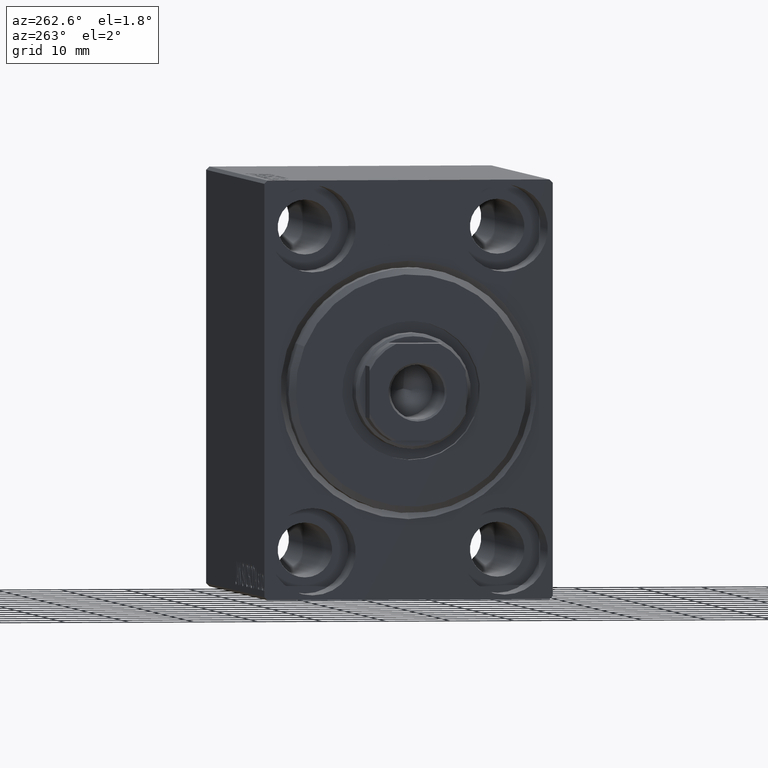
[diagram: clean part render]
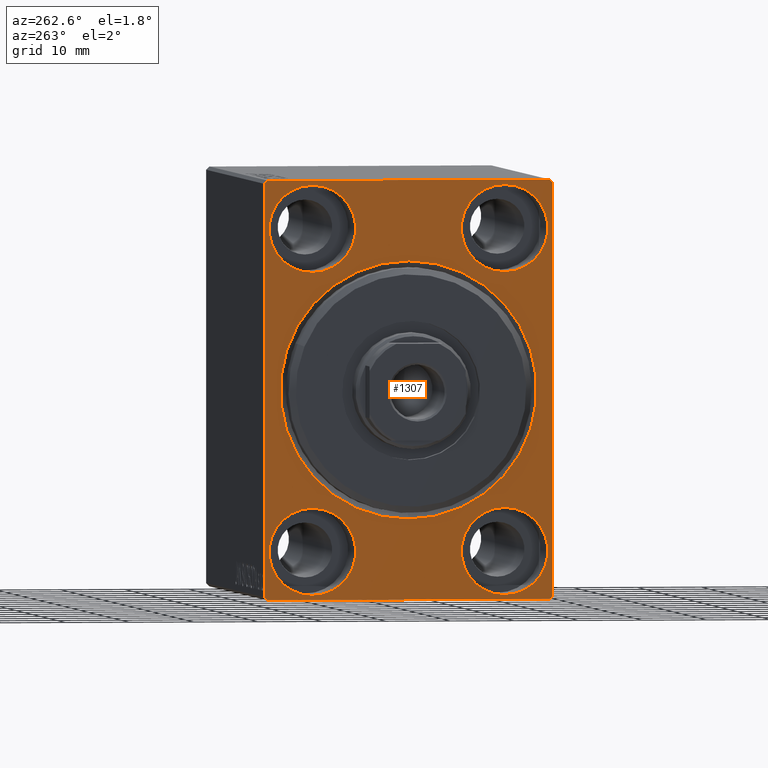
[diagram: same view with one face highlighted and labeled with its STEP entity id]
A machine part, auxiliary view. The second image highlights one B-rep face of the part: STEP entity #1307.
In plain terms, the highlighted planar face has unit normal (1, 0, 0).
Its self-contained STEP definition (entity closure, byte-faithful):
#258 = CARTESIAN_POINT ( 'NONE',  ( 0.000000000000000000, 22.00000000000001421, -32.50000000000000711 ) ) ;
#289 = AXIS2_PLACEMENT_3D ( 'NONE', #36492, #5562, #26475 ) ;
#637 = FACE_OUTER_BOUND ( 'NONE', #5771, .T. ) ;
#1307 = ADVANCED_FACE ( 'NONE', ( #38453, #41344, #24872, #4631, #25316, #637 ), #42226, .F. ) ;
#1436 = EDGE_CURVE ( 'NONE', #35369, #43228, #42024, .T. ) ;
#1600 = CIRCLE ( 'NONE', #12230, 6.749999999999999112 ) ;
#2415 = DIRECTION ( 'NONE',  ( 1.000000000000000000, 0.000000000000000000, 0.000000000000000000 ) ) ;
#3055 = EDGE_CURVE ( 'NONE', #25371, #10202, #42170, .T. ) ;
#3279 = ORIENTED_EDGE ( 'NONE', *, *, #33437, .T. ) ;
#3360 = CARTESIAN_POINT ( 'NONE',  ( 0.000000000000000000, -14.99999999999999645, 25.00000000000000000 ) ) ;
#3452 = EDGE_CURVE ( 'NONE', #4299, #5456, #37913, .T. ) ;
#4108 = DIRECTION ( 'NONE',  ( 0.000000000000000000, -1.000000000000000000, -1.541976423090495387E-16 ) ) ;
#4241 = EDGE_CURVE ( 'NONE', #35288, #22799, #42171, .T. ) ;
#4299 = VERTEX_POINT ( 'NONE', #16279 ) ;
#4524 = DIRECTION ( 'NONE',  ( -0.000000000000000000, -0.7071067811865378028, 0.7071067811865573427 ) ) ;
#4572 = VECTOR ( 'NONE', #26530, 1000.000000000000000 ) ;
#4592 = ORIENTED_EDGE ( 'NONE', *, *, #11356, .F. ) ;
#4631 = FACE_BOUND ( 'NONE', #29310, .T. ) ;
#4639 = CARTESIAN_POINT ( 'NONE',  ( 0.000000000000000000, -22.50000000000000711, -32.50000000000000711 ) ) ;
#5456 = VERTEX_POINT ( 'NONE', #35968 ) ;
#5562 = DIRECTION ( 'NONE',  ( 1.000000000000000000, 0.000000000000000000, 0.000000000000000000 ) ) ;
#5565 = ORIENTED_EDGE ( 'NONE', *, *, #43705, .T. ) ;
#5753 = CARTESIAN_POINT ( 'NONE',  ( 0.000000000000000000, -15.00000000000000355, -18.25000000000000355 ) ) ;
#5771 = EDGE_LOOP ( 'NONE', ( #35817, #30609, #30430, #5565, #13773, #7352, #4592, #3279 ) ) ;
#5996 = ORIENTED_EDGE ( 'NONE', *, *, #11722, .F. ) ;
#6394 = DIRECTION ( 'NONE',  ( 0.000000000000000000, 0.000000000000000000, -1.000000000000000000 ) ) ;
#6441 = DIRECTION ( 'NONE',  ( 0.000000000000000000, 0.000000000000000000, 1.000000000000000000 ) ) ;
#6713 = EDGE_CURVE ( 'NONE', #43228, #35369, #9252, .T. ) ;
#7288 = CIRCLE ( 'NONE', #33612, 6.749999999999999112 ) ;
#7352 = ORIENTED_EDGE ( 'NONE', *, *, #33740, .T. ) ;
#7607 = AXIS2_PLACEMENT_3D ( 'NONE', #13802, #23390, #10027 ) ;
#8065 = DIRECTION ( 'NONE',  ( -0.000000000000000000, 0.7071067811865474617, 0.7071067811865474617 ) ) ;
#8336 = CIRCLE ( 'NONE', #7607, 6.749999999999999112 ) ;
#8344 = DIRECTION ( 'NONE',  ( 0.000000000000000000, -1.067522139062650425E-16, 1.000000000000000000 ) ) ;
#8539 = AXIS2_PLACEMENT_3D ( 'NONE', #38562, #24768, #34345 ) ;
#9252 = CIRCLE ( 'NONE', #8539, 6.749999999999999112 ) ;
#10027 = DIRECTION ( 'NONE',  ( 0.000000000000000000, 0.000000000000000000, 1.000000000000000000 ) ) ;
#10202 = VERTEX_POINT ( 'NONE', #24713 ) ;
#10439 = VERTEX_POINT ( 'NONE', #11964 ) ;
#10700 = VERTEX_POINT ( 'NONE', #30200 ) ;
#10762 = AXIS2_PLACEMENT_3D ( 'NONE', #11299, #38896, #11745 ) ;
#11083 = VERTEX_POINT ( 'NONE', #34461 ) ;
#11299 = CARTESIAN_POINT ( 'NONE',  ( 0.000000000000000000, 0.000000000000000000, 0.000000000000000000 ) ) ;
#11356 = EDGE_CURVE ( 'NONE', #10439, #41612, #17990, .T. ) ;
#11722 = EDGE_CURVE ( 'NONE', #24255, #27100, #1600, .T. ) ;
#11745 = DIRECTION ( 'NONE',  ( 0.000000000000000000, 0.000000000000000000, -1.000000000000000000 ) ) ;
#11964 = CARTESIAN_POINT ( 'NONE',  ( 0.000000000000000000, -22.00000000000002132, -32.50000000000000711 ) ) ;
#12230 = AXIS2_PLACEMENT_3D ( 'NONE', #43513, #35716, #18824 ) ;
#13298 = CARTESIAN_POINT ( 'NONE',  ( 0.000000000000000000, 0.000000000000000000, 0.000000000000000000 ) ) ;
#13688 = CARTESIAN_POINT ( 'NONE',  ( 0.000000000000000000, 22.49999999999999289, 32.50000000000000000 ) ) ;
#13773 = ORIENTED_EDGE ( 'NONE', *, *, #3055, .F. ) ;
#13802 = CARTESIAN_POINT ( 'NONE',  ( 0.000000000000000000, 14.99999999999999645, -25.00000000000000000 ) ) ;
#13869 = EDGE_LOOP ( 'NONE', ( #38647, #41527 ) ) ;
#13877 = CARTESIAN_POINT ( 'NONE',  ( 0.000000000000000000, -22.00000000000002132, -32.50000000000000711 ) ) ;
#14011 = DIRECTION ( 'NONE',  ( -1.000000000000000000, 0.000000000000000000, 0.000000000000000000 ) ) ;
#14201 = DIRECTION ( 'NONE',  ( -0.000000000000000000, 0.7071067811865425767, -0.7071067811865525687 ) ) ;
#14225 = DIRECTION ( 'NONE',  ( -1.000000000000000000, 0.000000000000000000, 0.000000000000000000 ) ) ;
#14321 = VECTOR ( 'NONE', #8065, 1000.000000000000114 ) ;
#14488 = VERTEX_POINT ( 'NONE', #33618 ) ;
#15086 = VECTOR ( 'NONE', #42233, 1000.000000000000000 ) ;
#15376 = CARTESIAN_POINT ( 'NONE',  ( 0.000000000000000000, 14.99999999999999645, -18.25000000000000355 ) ) ;
#16248 = CARTESIAN_POINT ( 'NONE',  ( 0.000000000000000000, 15.00000000000000355, 25.00000000000000000 ) ) ;
#16279 = CARTESIAN_POINT ( 'NONE',  ( 0.000000000000000000, 2.449293598294706907E-15, -20.00000000000000355 ) ) ;
#17360 = CARTESIAN_POINT ( 'NONE',  ( 0.000000000000000000, 15.00000000000000355, 25.00000000000000000 ) ) ;
#17804 = VERTEX_POINT ( 'NONE', #22846 ) ;
#17990 = LINE ( 'NONE', #4639, #15086 ) ;
#18203 = EDGE_CURVE ( 'NONE', #11083, #22202, #7288, .T. ) ;
#18739 = AXIS2_PLACEMENT_3D ( 'NONE', #40386, #27250, #36831 ) ;
#18824 = DIRECTION ( 'NONE',  ( 0.000000000000000000, 0.000000000000000000, 1.000000000000000000 ) ) ;
#18970 = LINE ( 'NONE', #28112, #4572 ) ;
#19342 = CARTESIAN_POINT ( 'NONE',  ( 0.000000000000000000, -22.50000000000000711, -32.00000000000000711 ) ) ;
#19708 = CARTESIAN_POINT ( 'NONE',  ( 0.000000000000000000, -14.99999999999999645, 31.75000000000000000 ) ) ;
#20465 = LINE ( 'NONE', #24017, #20792 ) ;
#20792 = VECTOR ( 'NONE', #14201, 999.9999999999998863 ) ;
#20953 = ORIENTED_EDGE ( 'NONE', *, *, #36291, .F. ) ;
#21126 = CARTESIAN_POINT ( 'NONE',  ( 0.000000000000000000, 22.50000000000000000, -32.00000000000002132 ) ) ;
#21655 = DIRECTION ( 'NONE',  ( -1.000000000000000000, 0.000000000000000000, 0.000000000000000000 ) ) ;
#22037 = CARTESIAN_POINT ( 'NONE',  ( 0.000000000000000000, 14.99999999999999645, -31.75000000000000000 ) ) ;
#22202 = VERTEX_POINT ( 'NONE', #40906 ) ;
#22580 = EDGE_CURVE ( 'NONE', #10700, #36370, #18970, .T. ) ;
#22799 = VERTEX_POINT ( 'NONE', #22037 ) ;
#22846 = CARTESIAN_POINT ( 'NONE',  ( 0.000000000000000000, 21.99999999999999289, 32.50000000000000000 ) ) ;
#23390 = DIRECTION ( 'NONE',  ( -1.000000000000000000, 0.000000000000000000, 0.000000000000000000 ) ) ;
#24017 = CARTESIAN_POINT ( 'NONE',  ( 0.000000000000000000, 21.99999999999999289, 32.50000000000000000 ) ) ;
#24122 = EDGE_LOOP ( 'NONE', ( #37958, #29153 ) ) ;
#24145 = EDGE_CURVE ( 'NONE', #5456, #4299, #37295, .T. ) ;
#24250 = DIRECTION ( 'NONE',  ( 0.000000000000000000, 0.000000000000000000, 1.000000000000000000 ) ) ;
#24255 = VERTEX_POINT ( 'NONE', #30856 ) ;
#24713 = CARTESIAN_POINT ( 'NONE',  ( 0.000000000000000000, 22.49999999999999289, 31.99999999999999289 ) ) ;
#24768 = DIRECTION ( 'NONE',  ( -1.000000000000000000, 0.000000000000000000, 0.000000000000000000 ) ) ;
#24872 = FACE_BOUND ( 'NONE', #38844, .T. ) ;
#25263 = CARTESIAN_POINT ( 'NONE',  ( 0.000000000000000000, 22.50000000000000000, -32.50000000000000711 ) ) ;
#25316 = FACE_BOUND ( 'NONE', #44021, .T. ) ;
#25371 = VERTEX_POINT ( 'NONE', #21126 ) ;
#26044 = AXIS2_PLACEMENT_3D ( 'NONE', #41900, #21655, #34349 ) ;
#26475 = DIRECTION ( 'NONE',  ( 0.000000000000000000, 0.000000000000000000, -1.000000000000000000 ) ) ;
#26530 = DIRECTION ( 'NONE',  ( 0.000000000000000000, 0.000000000000000000, -1.000000000000000000 ) ) ;
#26746 = CIRCLE ( 'NONE', #26044, 6.749999999999999112 ) ;
#27100 = VERTEX_POINT ( 'NONE', #5753 ) ;
#27250 = DIRECTION ( 'NONE',  ( -1.000000000000000000, 0.000000000000000000, 0.000000000000000000 ) ) ;
#28112 = CARTESIAN_POINT ( 'NONE',  ( 0.000000000000000000, -22.50000000000000711, 32.49999999999999289 ) ) ;
#28322 = CARTESIAN_POINT ( 'NONE',  ( 0.000000000000000000, -22.50000000000000711, 31.99999999999999289 ) ) ;
#29153 = ORIENTED_EDGE ( 'NONE', *, *, #3452, .T. ) ;
#29310 = EDGE_LOOP ( 'NONE', ( #20953, #37508 ) ) ;
#29875 = ORIENTED_EDGE ( 'NONE', *, *, #1436, .F. ) ;
#30200 = CARTESIAN_POINT ( 'NONE',  ( 0.000000000000000000, -22.50000000000000711, 31.99999999999999289 ) ) ;
#30430 = ORIENTED_EDGE ( 'NONE', *, *, #30897, .F. ) ;
#30609 = ORIENTED_EDGE ( 'NONE', *, *, #41505, .T. ) ;
#30686 = DIRECTION ( 'NONE',  ( -1.000000000000000000, 0.000000000000000000, 0.000000000000000000 ) ) ;
#30856 = CARTESIAN_POINT ( 'NONE',  ( 0.000000000000000000, -15.00000000000000355, -31.75000000000000000 ) ) ;
#30897 = EDGE_CURVE ( 'NONE', #17804, #14488, #34596, .T. ) ;
#33179 = CARTESIAN_POINT ( 'NONE',  ( 0.000000000000000000, -14.99999999999999645, 18.25000000000000355 ) ) ;
#33437 = EDGE_CURVE ( 'NONE', #10439, #36370, #35004, .T. ) ;
#33491 = EDGE_CURVE ( 'NONE', #27100, #24255, #26746, .T. ) ;
#33612 = AXIS2_PLACEMENT_3D ( 'NONE', #16248, #30686, #6441 ) ;
#33618 = CARTESIAN_POINT ( 'NONE',  ( 0.000000000000000000, -21.99999999999999289, 32.49999999999999289 ) ) ;
#33740 = EDGE_CURVE ( 'NONE', #25371, #41612, #34946, .T. ) ;
#33924 = CIRCLE ( 'NONE', #41029, 6.749999999999999112 ) ;
#34079 = DIRECTION ( 'NONE',  ( 0.000000000000000000, -0.7071067811865376918, -0.7071067811865573427 ) ) ;
#34345 = DIRECTION ( 'NONE',  ( 0.000000000000000000, 0.000000000000000000, 1.000000000000000000 ) ) ;
#34349 = DIRECTION ( 'NONE',  ( 0.000000000000000000, 0.000000000000000000, 1.000000000000000000 ) ) ;
#34461 = CARTESIAN_POINT ( 'NONE',  ( 0.000000000000000000, 15.00000000000000355, 18.25000000000000355 ) ) ;
#34596 = LINE ( 'NONE', #13688, #42433 ) ;
#34946 = LINE ( 'NONE', #38513, #40961 ) ;
#35004 = LINE ( 'NONE', #13877, #35274 ) ;
#35274 = VECTOR ( 'NONE', #4524, 1000.000000000000000 ) ;
#35288 = VERTEX_POINT ( 'NONE', #15376 ) ;
#35369 = VERTEX_POINT ( 'NONE', #33179 ) ;
#35716 = DIRECTION ( 'NONE',  ( -1.000000000000000000, 0.000000000000000000, 0.000000000000000000 ) ) ;
#35817 = ORIENTED_EDGE ( 'NONE', *, *, #22580, .F. ) ;
#35870 = LINE ( 'NONE', #28322, #14321 ) ;
#35968 = CARTESIAN_POINT ( 'NONE',  ( 0.000000000000000000, 0.000000000000000000, 20.00000000000000355 ) ) ;
#36097 = EDGE_CURVE ( 'NONE', #22799, #35288, #8336, .T. ) ;
#36291 = EDGE_CURVE ( 'NONE', #22202, #11083, #33924, .T. ) ;
#36370 = VERTEX_POINT ( 'NONE', #19342 ) ;
#36492 = CARTESIAN_POINT ( 'NONE',  ( 0.000000000000000000, 0.000000000000000000, 0.000000000000000000 ) ) ;
#36831 = DIRECTION ( 'NONE',  ( 0.000000000000000000, 0.000000000000000000, 1.000000000000000000 ) ) ;
#37295 = CIRCLE ( 'NONE', #42985, 20.00000000000000355 ) ;
#37508 = ORIENTED_EDGE ( 'NONE', *, *, #18203, .F. ) ;
#37612 = DIRECTION ( 'NONE',  ( 0.000000000000000000, 0.000000000000000000, 1.000000000000000000 ) ) ;
#37796 = VECTOR ( 'NONE', #8344, 1000.000000000000000 ) ;
#37913 = CIRCLE ( 'NONE', #289, 20.00000000000000355 ) ;
#37958 = ORIENTED_EDGE ( 'NONE', *, *, #24145, .T. ) ;
#38453 = FACE_BOUND ( 'NONE', #24122, .T. ) ;
#38513 = CARTESIAN_POINT ( 'NONE',  ( 0.000000000000000000, 22.50000000000000000, -32.00000000000002132 ) ) ;
#38562 = CARTESIAN_POINT ( 'NONE',  ( 0.000000000000000000, -14.99999999999999645, 25.00000000000000000 ) ) ;
#38647 = ORIENTED_EDGE ( 'NONE', *, *, #4241, .F. ) ;
#38844 = EDGE_LOOP ( 'NONE', ( #40859, #29875 ) ) ;
#38896 = DIRECTION ( 'NONE',  ( 1.000000000000000000, 0.000000000000000000, 0.000000000000000000 ) ) ;
#39896 = ORIENTED_EDGE ( 'NONE', *, *, #33491, .F. ) ;
#40386 = CARTESIAN_POINT ( 'NONE',  ( 0.000000000000000000, 14.99999999999999645, -25.00000000000000000 ) ) ;
#40859 = ORIENTED_EDGE ( 'NONE', *, *, #6713, .F. ) ;
#40906 = CARTESIAN_POINT ( 'NONE',  ( 0.000000000000000000, 15.00000000000000355, 31.75000000000000000 ) ) ;
#40961 = VECTOR ( 'NONE', #34079, 1000.000000000000114 ) ;
#41029 = AXIS2_PLACEMENT_3D ( 'NONE', #17360, #14011, #24250 ) ;
#41344 = FACE_BOUND ( 'NONE', #13869, .T. ) ;
#41505 = EDGE_CURVE ( 'NONE', #10700, #14488, #35870, .T. ) ;
#41527 = ORIENTED_EDGE ( 'NONE', *, *, #36097, .F. ) ;
#41612 = VERTEX_POINT ( 'NONE', #258 ) ;
#41900 = CARTESIAN_POINT ( 'NONE',  ( 0.000000000000000000, -15.00000000000000355, -25.00000000000000000 ) ) ;
#42024 = CIRCLE ( 'NONE', #42758, 6.749999999999999112 ) ;
#42170 = LINE ( 'NONE', #25263, #37796 ) ;
#42171 = CIRCLE ( 'NONE', #18739, 6.749999999999999112 ) ;
#42226 = PLANE ( 'NONE',  #10762 ) ;
#42233 = DIRECTION ( 'NONE',  ( 0.000000000000000000, 1.000000000000000000, 0.000000000000000000 ) ) ;
#42433 = VECTOR ( 'NONE', #4108, 1000.000000000000000 ) ;
#42758 = AXIS2_PLACEMENT_3D ( 'NONE', #3360, #14225, #37612 ) ;
#42985 = AXIS2_PLACEMENT_3D ( 'NONE', #13298, #2415, #6394 ) ;
#43228 = VERTEX_POINT ( 'NONE', #19708 ) ;
#43513 = CARTESIAN_POINT ( 'NONE',  ( 0.000000000000000000, -15.00000000000000355, -25.00000000000000000 ) ) ;
#43705 = EDGE_CURVE ( 'NONE', #17804, #10202, #20465, .T. ) ;
#44021 = EDGE_LOOP ( 'NONE', ( #39896, #5996 ) ) ;